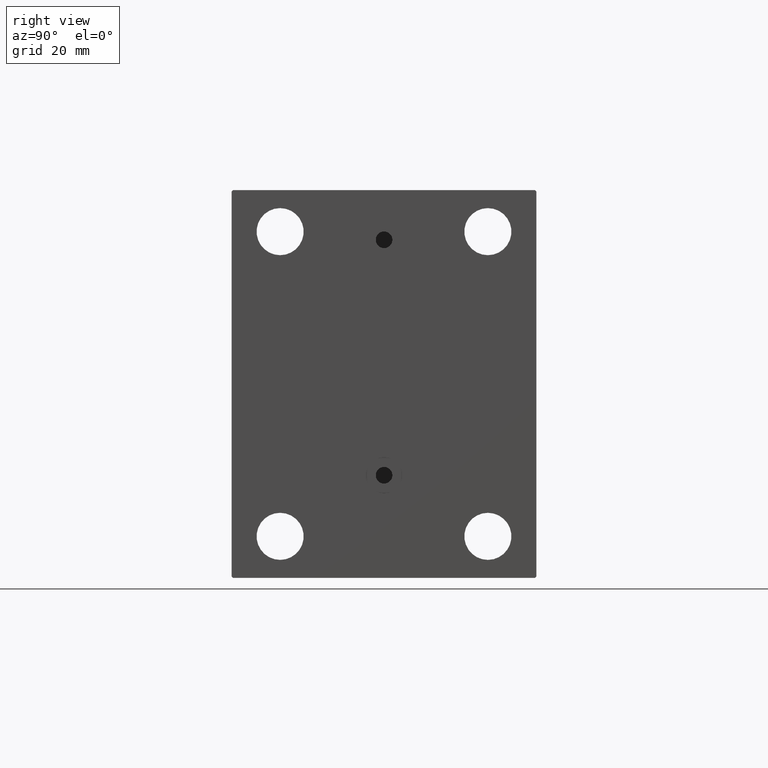
[diagram: clean part render]
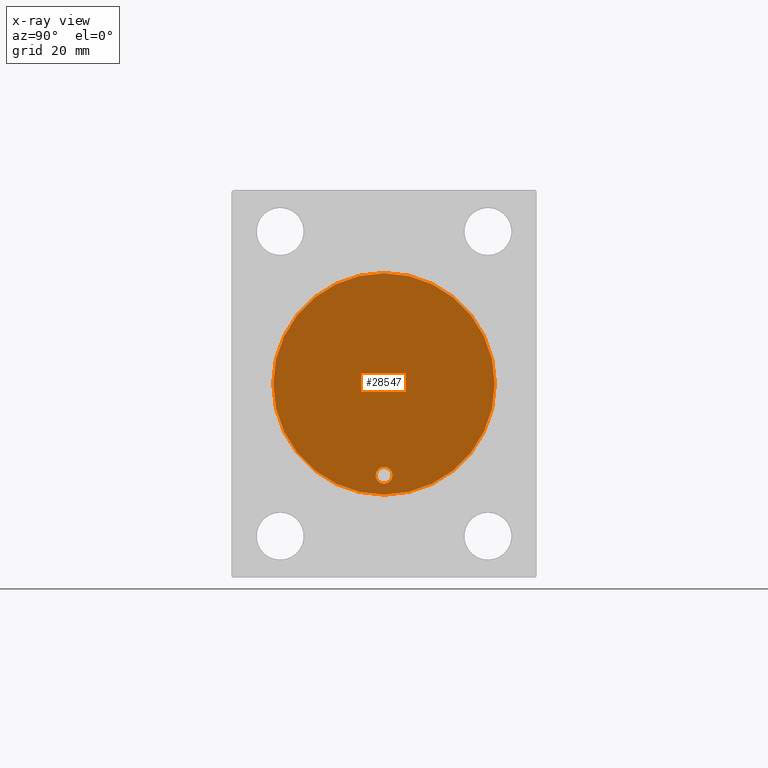
[diagram: x-ray — body ghosted, one internal face saturated and labeled with its STEP entity id]
A machine part, right view, then the same camera in x-ray: the body is ghosted and one INTERNAL B-rep face — a face not visible from any outside direction — is saturated and labeled: STEP entity #28547.
In plain terms, the highlighted planar face has unit normal (-1, 0, 0).
Its self-contained STEP definition (entity closure, byte-faithful):
#1090 = ORIENTED_EDGE ( 'NONE', *, *, #20214, .T. ) ;
#3335 = CARTESIAN_POINT ( 'NONE',  ( 51.00000000000000000, 4.041334437186266200E-15, -33.00000000000000000 ) ) ;
#3549 = CARTESIAN_POINT ( 'NONE',  ( 51.00000000000000000, 4.041334437186266200E-15, -36.00000000000000711 ) ) ;
#4837 = CARTESIAN_POINT ( 'NONE',  ( 51.00000000000000000, 0.000000000000000000, 0.000000000000000000 ) ) ;
#5487 = EDGE_CURVE ( 'NONE', #23872, #27860, #23989, .T. ) ;
#5811 = CARTESIAN_POINT ( 'NONE',  ( 51.00000000000000000, 0.000000000000000000, 40.00000000000000000 ) ) ;
#6477 = CARTESIAN_POINT ( 'NONE',  ( 51.00000000000000000, 0.000000000000000000, 0.000000000000000000 ) ) ;
#7958 = PLANE ( 'NONE',  #29323 ) ;
#8777 = CARTESIAN_POINT ( 'NONE',  ( 51.00000000000000000, 4.041334437186266200E-15, -33.00000000000000000 ) ) ;
#10037 = AXIS2_PLACEMENT_3D ( 'NONE', #4837, #32898, #25539 ) ;
#10217 = EDGE_CURVE ( 'NONE', #13072, #29713, #21606, .T. ) ;
#13072 = VERTEX_POINT ( 'NONE', #45353 ) ;
#13787 = ORIENTED_EDGE ( 'NONE', *, *, #10217, .F. ) ;
#14848 = FACE_BOUND ( 'NONE', #22025, .T. ) ;
#15919 = AXIS2_PLACEMENT_3D ( 'NONE', #6477, #34315, #30407 ) ;
#17381 = DIRECTION ( 'NONE',  ( -1.000000000000000000, 0.000000000000000000, 0.000000000000000000 ) ) ;
#18342 = ORIENTED_EDGE ( 'NONE', *, *, #33930, .F. ) ;
#20214 = EDGE_CURVE ( 'NONE', #27860, #23872, #35731, .T. ) ;
#21606 = CIRCLE ( 'NONE', #39978, 3.000000000000002665 ) ;
#22025 = EDGE_LOOP ( 'NONE', ( #18342, #13787 ) ) ;
#23872 = VERTEX_POINT ( 'NONE', #5811 ) ;
#23989 = CIRCLE ( 'NONE', #15919, 40.00000000000000000 ) ;
#25539 = DIRECTION ( 'NONE',  ( 0.000000000000000000, 0.000000000000000000, 1.000000000000000000 ) ) ;
#27264 = CIRCLE ( 'NONE', #40517, 3.000000000000002665 ) ;
#27860 = VERTEX_POINT ( 'NONE', #32390 ) ;
#28547 = ADVANCED_FACE ( 'NONE', ( #14848, #32556 ), #7958, .T. ) ;
#28880 = DIRECTION ( 'NONE',  ( 0.000000000000000000, 0.000000000000000000, 1.000000000000000000 ) ) ;
#29323 = AXIS2_PLACEMENT_3D ( 'NONE', #42258, #35329, #28880 ) ;
#29713 = VERTEX_POINT ( 'NONE', #3549 ) ;
#30220 = ORIENTED_EDGE ( 'NONE', *, *, #5487, .T. ) ;
#30407 = DIRECTION ( 'NONE',  ( 0.000000000000000000, 0.000000000000000000, 1.000000000000000000 ) ) ;
#31412 = DIRECTION ( 'NONE',  ( 0.000000000000000000, 0.000000000000000000, 1.000000000000000000 ) ) ;
#32390 = CARTESIAN_POINT ( 'NONE',  ( 51.00000000000000000, 4.898587196589413026E-15, -40.00000000000000000 ) ) ;
#32556 = FACE_OUTER_BOUND ( 'NONE', #36322, .T. ) ;
#32898 = DIRECTION ( 'NONE',  ( -1.000000000000000000, 0.000000000000000000, 0.000000000000000000 ) ) ;
#33930 = EDGE_CURVE ( 'NONE', #29713, #13072, #27264, .T. ) ;
#34315 = DIRECTION ( 'NONE',  ( -1.000000000000000000, 0.000000000000000000, 0.000000000000000000 ) ) ;
#35329 = DIRECTION ( 'NONE',  ( -1.000000000000000000, 0.000000000000000000, 0.000000000000000000 ) ) ;
#35731 = CIRCLE ( 'NONE', #10037, 40.00000000000000000 ) ;
#36322 = EDGE_LOOP ( 'NONE', ( #30220, #1090 ) ) ;
#37513 = DIRECTION ( 'NONE',  ( 0.000000000000000000, 0.000000000000000000, 1.000000000000000000 ) ) ;
#39978 = AXIS2_PLACEMENT_3D ( 'NONE', #3335, #17381, #31412 ) ;
#40517 = AXIS2_PLACEMENT_3D ( 'NONE', #8777, #40991, #37513 ) ;
#40991 = DIRECTION ( 'NONE',  ( -1.000000000000000000, 0.000000000000000000, 0.000000000000000000 ) ) ;
#42258 = CARTESIAN_POINT ( 'NONE',  ( 51.00000000000000000, 0.000000000000000000, 0.000000000000000000 ) ) ;
#45353 = CARTESIAN_POINT ( 'NONE',  ( 51.00000000000000000, 4.408728476930471644E-15, -30.00000000000000000 ) ) ;